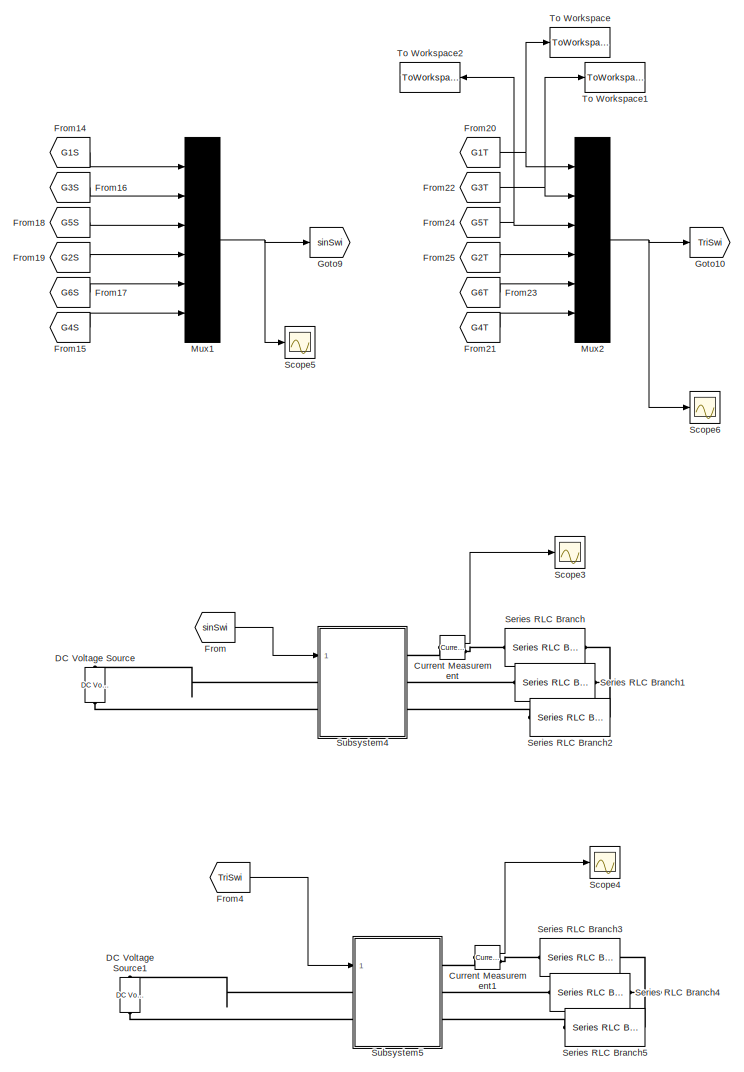
[diagram: root canvas - part 1/2, right side, full height]
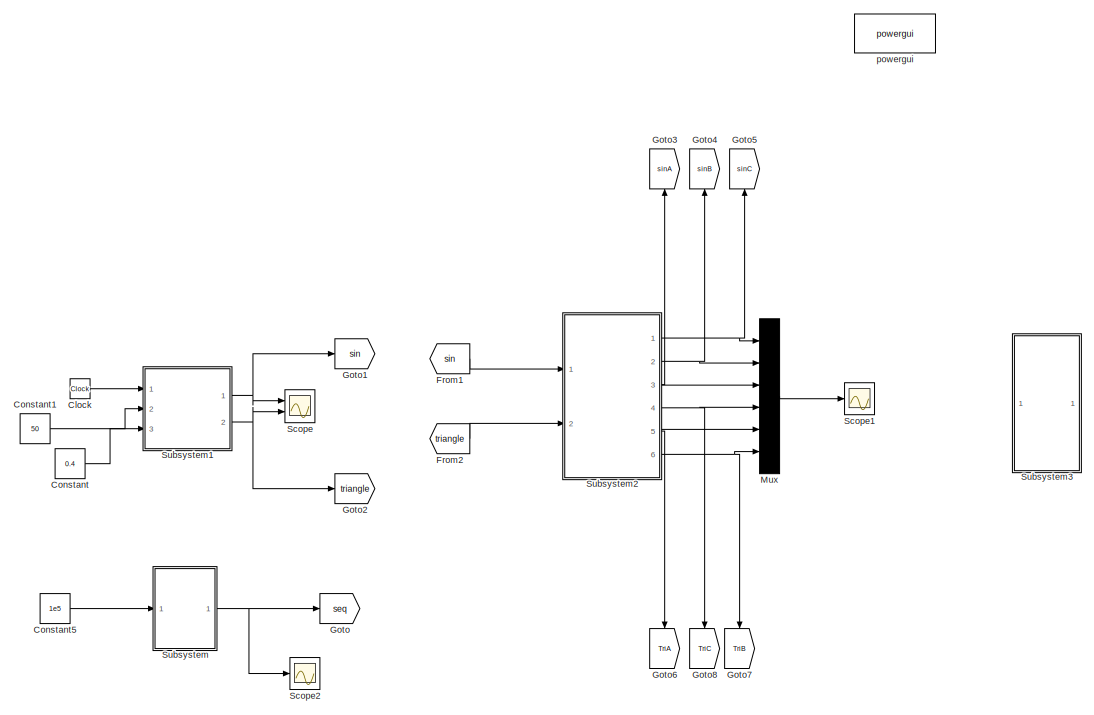
[diagram: root canvas - part 2/2, middle left region]
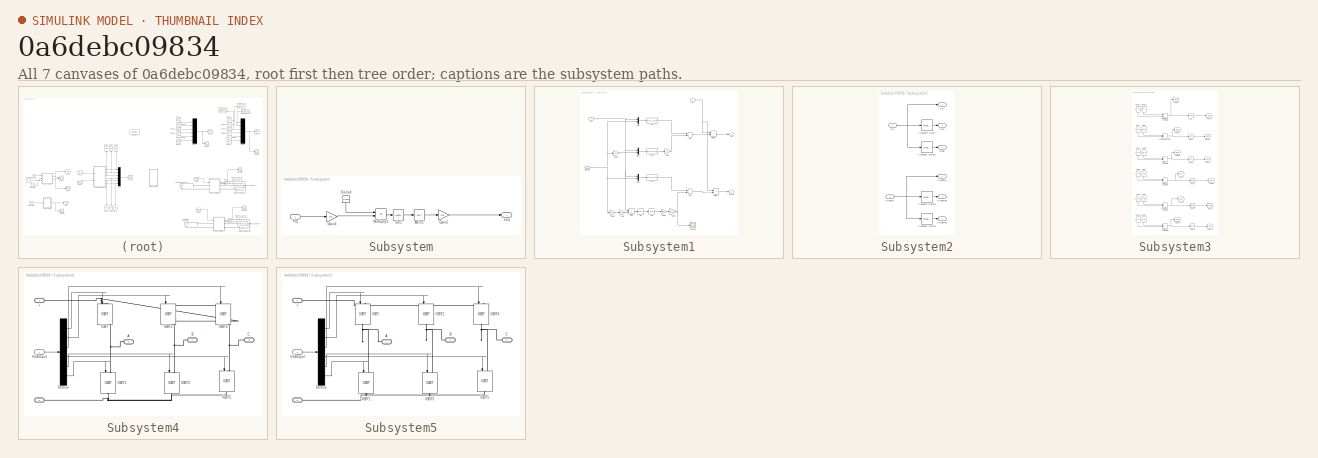
[diagram: thumbnail index - all 7 canvases of the model, root first then tree order]
MODEL slx_0a6debc09834
KIND model
CONFIG AbsTol = auto
CONFIG EnableMultiTasking = off
CONFIG FixedStep = 1e-5
CONFIG MaxStep = auto
CONFIG MinStep = auto
CONFIG RelTol = 1e-3
CONFIG SampleTimeConstraint = Unconstrained
CONFIG Solver = VariableStepDiscrete
CONFIG SolverName = VariableStepDiscrete
CONFIG StartTime = 0.0
CONFIG StopTime = 0.5
BLOCK [Clock] Clock
  Decimation = 1
BLOCK [Constant] Constant
  Value = 0.4
BLOCK [Constant] Constant1
  Value = 50
BLOCK [Constant] Constant5
  Value = 1e5
BLOCK [Reference] Current Measurement  REF=powerlib/Measurements/Current Measurement
  Ports = [0, 1, 0, 0, 0, 1, 1]
  SourceBlock = powerlib/Measurements/Current Measurement
  SourceProductBaseCode = PS
  SourceProductName = Simscape Power Systems
  SourceType = Current Measurement
  UserDataPersistent = on
BLOCK [Reference] Current Measurement1  REF=powerlib/Measurements/Current Measurement
  Ports = [0, 1, 0, 0, 0, 1, 1]
  SourceBlock = powerlib/Measurements/Current Measurement
  SourceProductBaseCode = PS
  SourceProductName = Simscape Power Systems
  SourceType = Current Measurement
  UserDataPersistent = on
BLOCK [Reference] DC Voltage Source  REF=powerlib/Electrical
Sources/DC Voltage Source
  Ports = [0, 0, 0, 0, 0, 1, 1]
  SourceBlock = powerlib/Electrical\nSources/DC Voltage Source
  SourceProductBaseCode = PS
  SourceProductName = Simscape Power Systems
  SourceType = DC Voltage Source
BLOCK [Reference] DC Voltage Source1  REF=powerlib/Electrical
Sources/DC Voltage Source
  Ports = [0, 0, 0, 0, 0, 1, 1]
  SourceBlock = powerlib/Electrical\nSources/DC Voltage Source
  SourceProductBaseCode = PS
  SourceProductName = Simscape Power Systems
  SourceType = DC Voltage Source
BLOCK [From] From
  GotoTag = sinSwi
  TagVisibility = global
BLOCK [From] From1
  GotoTag = sin
BLOCK [From] From14
  GotoTag = G1S
  TagVisibility = global
BLOCK [From] From15
  GotoTag = G4S
  TagVisibility = global
BLOCK [From] From16
  GotoTag = G3S
  TagVisibility = global
BLOCK [From] From17
  GotoTag = G6S
  TagVisibility = global
BLOCK [From] From18
  GotoTag = G5S
  TagVisibility = global
BLOCK [From] From19
  GotoTag = G2S
  TagVisibility = global
BLOCK [From] From2
  GotoTag = triangle
BLOCK [From] From20
  GotoTag = G1T
  TagVisibility = global
BLOCK [From] From21
  GotoTag = G4T
  TagVisibility = global
BLOCK [From] From22
  GotoTag = G3T
  TagVisibility = global
BLOCK [From] From23
  GotoTag = G6T
  TagVisibility = global
BLOCK [From] From24
  GotoTag = G5T
  TagVisibility = global
BLOCK [From] From25
  GotoTag = G2T
  TagVisibility = global
BLOCK [From] From4
  GotoTag = TriSwi
  TagVisibility = global
BLOCK [Goto] Goto
  GotoTag = seq
  TagVisibility = global
BLOCK [Goto] Goto1
  GotoTag = sin
BLOCK [Goto] Goto10
  GotoTag = TriSwi
  TagVisibility = global
BLOCK [Goto] Goto2
  GotoTag = triangle
BLOCK [Goto] Goto3
  GotoTag = sinA
  TagVisibility = global
BLOCK [Goto] Goto4
  GotoTag = sinB
  TagVisibility = global
BLOCK [Goto] Goto5
  GotoTag = sinC
  TagVisibility = global
BLOCK [Goto] Goto6
  GotoTag = TriA
  TagVisibility = global
BLOCK [Goto] Goto7
  GotoTag = TriB
  TagVisibility = global
BLOCK [Goto] Goto8
  GotoTag = TriC
  TagVisibility = global
BLOCK [Goto] Goto9
  GotoTag = sinSwi
  TagVisibility = global
BLOCK [Mux] Mux
  DisplayOption = bar
  Inputs = 6
  Ports = [6, 1]
BLOCK [Mux] Mux1
  DisplayOption = bar
  Inputs = 6
  Ports = [6, 1]
BLOCK [Mux] Mux2
  DisplayOption = bar
  Inputs = 6
  Ports = [6, 1]
BLOCK [Scope] Scope
  Floating = off
  NumInputPorts = 2
  Ports = [2]
  ScopeSpecificationString = Simulink.scopes.TimeScopeBlockCfg('CurrentConfiguration', extmgr.ConfigurationSet(extmgr.Configuration('Core','General UI',true),extmgr.Configuration('Core','Source UI',true),extmgr.Configuration('Sources','WiredSimulink',true,'DataLoggingVariableName','ScopeData2'),extmgr.Configuration('Visuals','Time Domain',true,'SerializedDisplays',{struct('MinYLimReal','-2.09982','MaxYLimReal','0.93513','YLab...<+2108ch>
BLOCK [Scope] Scope1
  Floating = off
  NumInputPorts = 1
  Ports = [1]
  ScopeSpecificationString = Simulink.scopes.TimeScopeBlockCfg('CurrentConfiguration', extmgr.ConfigurationSet(extmgr.Configuration('Core','General UI',true),extmgr.Configuration('Core','Source UI',true),extmgr.Configuration('Sources','WiredSimulink',true,'DataLoggingVariableName','ScopeData3'),extmgr.Configuration('Visuals','Time Domain',true,'SerializedDisplays',{struct('MinYLimReal','-0.44179','MaxYLimReal','0.44179','YLab...<+1682ch>
BLOCK [Scope] Scope2
  Floating = off
  NumInputPorts = 1
  Ports = [1]
  ScopeSpecificationString = Simulink.scopes.TimeScopeBlockCfg('CurrentConfiguration', extmgr.ConfigurationSet(extmgr.Configuration('Core','General UI',true),extmgr.Configuration('Core','Source UI',true),extmgr.Configuration('Sources','WiredSimulink',true,'DataLoggingVariableName','ScopeData1'),extmgr.Configuration('Visuals','Time Domain',true,'SerializedDisplays',{struct('MinYLimReal','-1.25','MaxYLimReal','1.25','YLabelReal...<+1398ch>
BLOCK [Scope] Scope3
  Floating = off
  NumInputPorts = 1
  Ports = [1]
  ScopeSpecificationString = Simulink.scopes.TimeScopeBlockCfg('CurrentConfiguration', extmgr.ConfigurationSet(extmgr.Configuration('Core','General UI',true),extmgr.Configuration('Core','Source UI',true),extmgr.Configuration('Sources','WiredSimulink',true,'DataLoggingVariableName','ScopeData4'),extmgr.Configuration('Visuals','Time Domain',true,'SerializedDisplays',{struct('MinYLimReal','-0.01637','MaxYLimReal','0.01637','YLab...<+1449ch>
BLOCK [Scope] Scope4
  Floating = off
  NumInputPorts = 1
  Ports = [1]
  ScopeSpecificationString = Simulink.scopes.TimeScopeBlockCfg('CurrentConfiguration', extmgr.ConfigurationSet(extmgr.Configuration('Core','General UI',true),extmgr.Configuration('Core','Source UI',true),extmgr.Configuration('Sources','WiredSimulink',true,'DataLoggingVariableName','ScopeData5'),extmgr.Configuration('Visuals','Time Domain',true,'SerializedDisplays',{struct('MinYLimReal','-0.08189','MaxYLimReal','0.10284','YLab...<+1451ch>
BLOCK [Scope] Scope5
  Floating = off
  NumInputPorts = 1
  Ports = [1]
  ScopeSpecificationString = Simulink.scopes.TimeScopeBlockCfg('CurrentConfiguration', extmgr.ConfigurationSet(extmgr.Configuration('Core','General UI',true),extmgr.Configuration('Core','Source UI',true),extmgr.Configuration('Sources','WiredSimulink',true,'DataLoggingVariableName','ScopeData6'),extmgr.Configuration('Visuals','Time Domain',true,'SerializedDisplays',{struct('MinYLimReal','-0.16524','MaxYLimReal','1.24969','YLab...<+1658ch>
BLOCK [Scope] Scope6
  Floating = off
  NumInputPorts = 1
  Ports = [1]
  ScopeSpecificationString = Simulink.scopes.TimeScopeBlockCfg('CurrentConfiguration', extmgr.ConfigurationSet(extmgr.Configuration('Core','General UI',true),extmgr.Configuration('Core','Source UI',true),extmgr.Configuration('Sources','WiredSimulink',true,'DataLoggingVariableName','ScopeData7'),extmgr.Configuration('Visuals','Time Domain',true,'SerializedDisplays',{struct('MinYLimReal','-10','MaxYLimReal','10','YLabelReal',''...<+1315ch>
BLOCK [Reference] Series RLC Branch  REF=powerlib/Elements/Series RLC Branch
  Ports = [0, 0, 0, 0, 0, 1, 1]
  SourceBlock = powerlib/Elements/Series RLC Branch
  SourceProductBaseCode = PS
  SourceProductName = Simscape Power Systems
  SourceType = Series RLC Branch
BLOCK [Reference] Series RLC Branch1  REF=powerlib/Elements/Series RLC Branch
  Ports = [0, 0, 0, 0, 0, 1, 1]
  SourceBlock = powerlib/Elements/Series RLC Branch
  SourceProductBaseCode = PS
  SourceProductName = Simscape Power Systems
  SourceType = Series RLC Branch
BLOCK [Reference] Series RLC Branch2  REF=powerlib/Elements/Series RLC Branch
  Ports = [0, 0, 0, 0, 0, 1, 1]
  SourceBlock = powerlib/Elements/Series RLC Branch
  SourceProductBaseCode = PS
  SourceProductName = Simscape Power Systems
  SourceType = Series RLC Branch
BLOCK [Reference] Series RLC Branch3  REF=powerlib/Elements/Series RLC Branch
  Ports = [0, 0, 0, 0, 0, 1, 1]
  SourceBlock = powerlib/Elements/Series RLC Branch
  SourceProductBaseCode = PS
  SourceProductName = Simscape Power Systems
  SourceType = Series RLC Branch
BLOCK [Reference] Series RLC Branch4  REF=powerlib/Elements/Series RLC Branch
  Ports = [0, 0, 0, 0, 0, 1, 1]
  SourceBlock = powerlib/Elements/Series RLC Branch
  SourceProductBaseCode = PS
  SourceProductName = Simscape Power Systems
  SourceType = Series RLC Branch
BLOCK [Reference] Series RLC Branch5  REF=powerlib/Elements/Series RLC Branch
  Ports = [0, 0, 0, 0, 0, 1, 1]
  SourceBlock = powerlib/Elements/Series RLC Branch
  SourceProductBaseCode = PS
  SourceProductName = Simscape Power Systems
  SourceType = Series RLC Branch
BLOCK [SubSystem] Subsystem
  Ports = [1, 1]
  RequestExecContextInheritance = off
BLOCK [Trigonometry] Subsystem/Asin1
  Operator = asin
  Ports = [1, 1]
BLOCK [Clock] Subsystem/Clock4
BLOCK [Inport] Subsystem/Frq
  IconDisplay = Port number
BLOCK [Gain] Subsystem/Gain4
  Gain = 2*pi
  OutDataTypeStr = Inherit: Inherit via internal rule
  ParamDataTypeStr = Inherit: Inherit via internal rule
  SaturateOnIntegerOverflow = off
BLOCK [Gain] Subsystem/Gain5
  Gain = 2/pi
  OutDataTypeStr = Inherit: Inherit via internal rule
  ParamDataTypeStr = Inherit: Inherit via internal rule
  SaturateOnIntegerOverflow = off
BLOCK [Product] Subsystem/Multiply1
  InputSameDT = off
  OutDataTypeStr = Inherit: Inherit via internal rule
  Ports = [2, 1]
  RndMeth = Floor
  SaturateOnIntegerOverflow = off
BLOCK [Trigonometry] Subsystem/Sin1
  Ports = [1, 1]
BLOCK [Outport] Subsystem/seq 
  IconDisplay = Port number
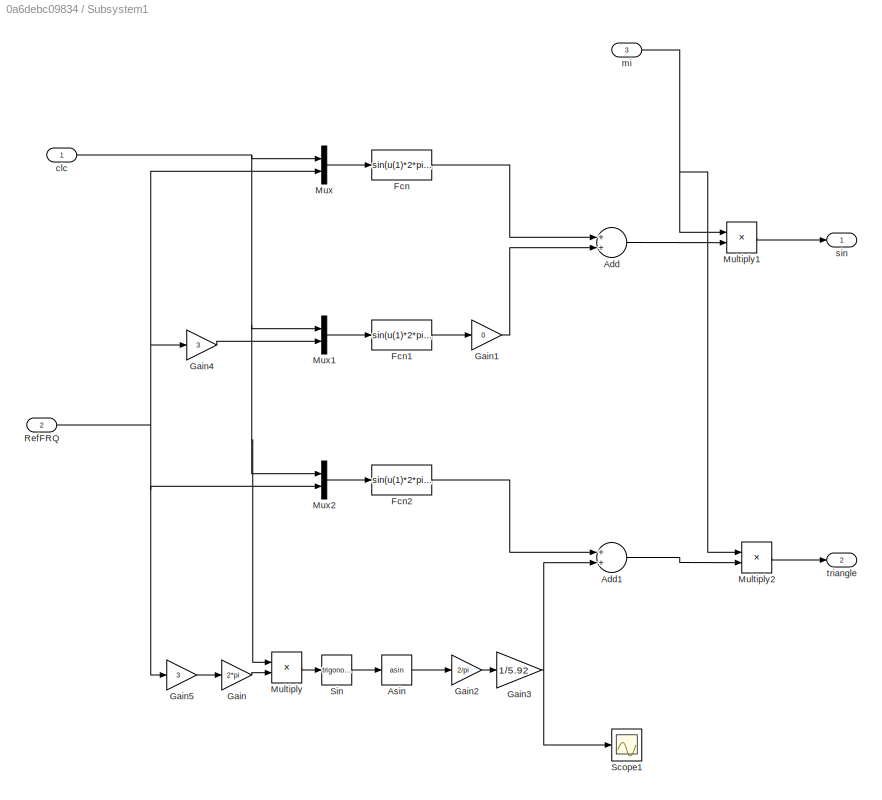
BLOCK [SubSystem] Subsystem1
  Ports = [3, 2]
  RequestExecContextInheritance = off
BLOCK [Sum] Subsystem1/Add
  InputSameDT = off
  OutDataTypeStr = Inherit: Inherit via internal rule
  Ports = [2, 1]
  SaturateOnIntegerOverflow = off
BLOCK [Sum] Subsystem1/Add1
  InputSameDT = off
  OutDataTypeStr = Inherit: Inherit via internal rule
  Ports = [2, 1]
  SaturateOnIntegerOverflow = off
BLOCK [Trigonometry] Subsystem1/Asin
  Operator = asin
  Ports = [1, 1]
BLOCK [Fcn] Subsystem1/Fcn
  Expr = sin(u(1)*2*pi*u(2))
BLOCK [Fcn] Subsystem1/Fcn1
  Expr = sin(u(1)*2*pi*u(2))
BLOCK [Fcn] Subsystem1/Fcn2
  Expr = sin(u(1)*2*pi*u(2))
BLOCK [Gain] Subsystem1/Gain
  Gain = 2*pi
  OutDataTypeStr = Inherit: Inherit via internal rule
  ParamDataTypeStr = Inherit: Inherit via internal rule
  SaturateOnIntegerOverflow = off
BLOCK [Gain] Subsystem1/Gain1
  Gain = 0
  OutDataTypeStr = Inherit: Inherit via internal rule
  ParamDataTypeStr = Inherit: Inherit via internal rule
  SaturateOnIntegerOverflow = off
BLOCK [Gain] Subsystem1/Gain2
  Gain = 2/pi
  OutDataTypeStr = Inherit: Inherit via internal rule
  ParamDataTypeStr = Inherit: Inherit via internal rule
  SaturateOnIntegerOverflow = off
BLOCK [Gain] Subsystem1/Gain3
  Gain = 1/5.92
  OutDataTypeStr = Inherit: Inherit via internal rule
  ParamDataTypeStr = Inherit: Inherit via internal rule
  SaturateOnIntegerOverflow = off
BLOCK [Gain] Subsystem1/Gain4
  Gain = 3
  OutDataTypeStr = Inherit: Inherit via internal rule
  ParamDataTypeStr = Inherit: Inherit via internal rule
  SaturateOnIntegerOverflow = off
BLOCK [Gain] Subsystem1/Gain5
  Gain = 3
  OutDataTypeStr = Inherit: Inherit via internal rule
  ParamDataTypeStr = Inherit: Inherit via internal rule
  SaturateOnIntegerOverflow = off
BLOCK [Product] Subsystem1/Multiply
  InputSameDT = off
  OutDataTypeStr = Inherit: Inherit via internal rule
  Ports = [2, 1]
  RndMeth = Floor
  SaturateOnIntegerOverflow = off
BLOCK [Product] Subsystem1/Multiply1
  InputSameDT = off
  OutDataTypeStr = Inherit: Inherit via internal rule
  Ports = [2, 1]
  RndMeth = Floor
  SaturateOnIntegerOverflow = off
BLOCK [Product] Subsystem1/Multiply2
  InputSameDT = off
  OutDataTypeStr = Inherit: Inherit via internal rule
  Ports = [2, 1]
  RndMeth = Floor
  SaturateOnIntegerOverflow = off
BLOCK [Mux] Subsystem1/Mux
  DisplayOption = bar
  Inputs = 2
  Ports = [2, 1]
BLOCK [Mux] Subsystem1/Mux1
  DisplayOption = bar
  Inputs = 2
  Ports = [2, 1]
BLOCK [Mux] Subsystem1/Mux2
  DisplayOption = bar
  Inputs = 2
  Ports = [2, 1]
BLOCK [Inport] Subsystem1/RefFRQ
  IconDisplay = Port number
  Port = 2
BLOCK [Scope] Subsystem1/Scope1
  Floating = off
  NumInputPorts = 1
  Ports = [1]
  ScopeSpecificationString = Simulink.scopes.TimeScopeBlockCfg('CurrentConfiguration', extmgr.ConfigurationSet(extmgr.Configuration('Core','General UI',true),extmgr.Configuration('Core','Source UI',true),extmgr.Configuration('Sources','WiredSimulink',true,'DataLoggingVariableName','ScopeData1'),extmgr.Configuration('Visuals','Time Domain',true,'SerializedDisplays',{struct('MinYLimReal','-0.18498','MaxYLimReal','0.24785','YLab...<+1410ch>
BLOCK [Trigonometry] Subsystem1/Sin
  Ports = [1, 1]
BLOCK [Inport] Subsystem1/clc
  IconDisplay = Port number
BLOCK [Inport] Subsystem1/mi
  IconDisplay = Port number
  Port = 3
BLOCK [Outport] Subsystem1/sin
  IconDisplay = Port number
BLOCK [Outport] Subsystem1/triangle
  IconDisplay = Port number
  Port = 2
BLOCK [SubSystem] Subsystem2
  Ports = [2, 6]
  RequestExecContextInheritance = off
BLOCK [TransportDelay] Subsystem2/Transport Delay
  DelayTime = (1/150)
  Ports = [1, 1]
BLOCK [TransportDelay] Subsystem2/Transport Delay1
  DelayTime = 2/150
  Ports = [1, 1]
BLOCK [TransportDelay] Subsystem2/Transport Delay2
  DelayTime = (1/150)
  Ports = [1, 1]
BLOCK [TransportDelay] Subsystem2/Transport Delay3
  DelayTime = 2/150
  Ports = [1, 1]
BLOCK [Inport] Subsystem2/sin
  IconDisplay = Port number
BLOCK [Outport] Subsystem2/sinA
  IconDisplay = Port number
  Port = 3
BLOCK [Outport] Subsystem2/sinB
  IconDisplay = Port number
  Port = 2
BLOCK [Outport] Subsystem2/sinC
  IconDisplay = Port number
BLOCK [Inport] Subsystem2/triangle
  IconDisplay = Port number
  Port = 2
BLOCK [Outport] Subsystem2/triangleA
  IconDisplay = Port number
  Port = 5
BLOCK [Outport] Subsystem2/triangleB
  IconDisplay = Port number
  Port = 6
BLOCK [Outport] Subsystem2/triangleC
  IconDisplay = Port number
  Port = 4
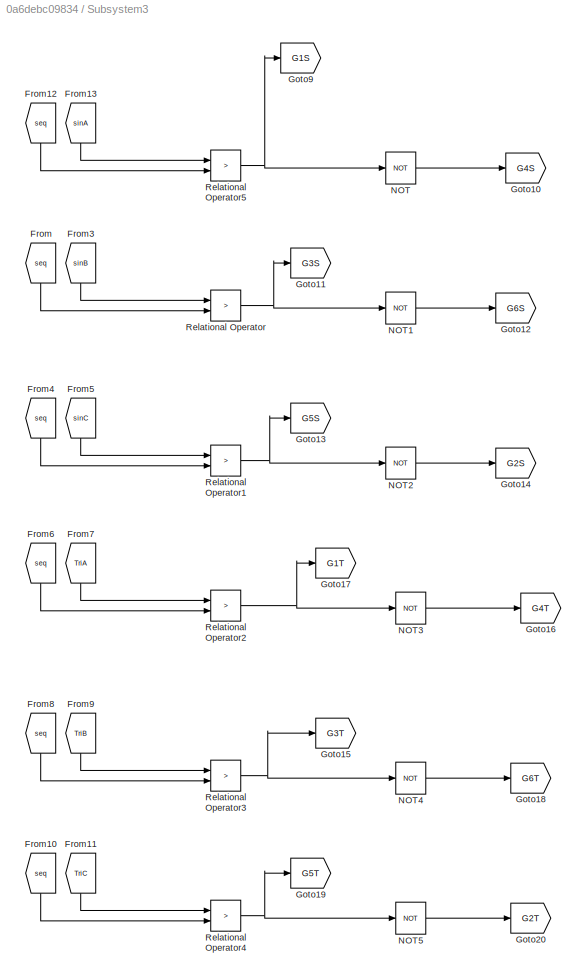
BLOCK [SubSystem] Subsystem3
  Ports = []
  RequestExecContextInheritance = off
BLOCK [From] Subsystem3/From
  GotoTag = seq
  TagVisibility = global
BLOCK [From] Subsystem3/From10
  GotoTag = seq
  TagVisibility = global
BLOCK [From] Subsystem3/From11
  GotoTag = TriC
  TagVisibility = global
BLOCK [From] Subsystem3/From12
  GotoTag = seq
  TagVisibility = global
BLOCK [From] Subsystem3/From13
  GotoTag = sinA
  TagVisibility = global
BLOCK [From] Subsystem3/From3
  GotoTag = sinB
  TagVisibility = global
BLOCK [From] Subsystem3/From4
  GotoTag = seq
  TagVisibility = global
BLOCK [From] Subsystem3/From5
  GotoTag = sinC
  TagVisibility = global
BLOCK [From] Subsystem3/From6
  GotoTag = seq
  TagVisibility = global
BLOCK [From] Subsystem3/From7
  GotoTag = TriA
  TagVisibility = global
BLOCK [From] Subsystem3/From8
  GotoTag = seq
  TagVisibility = global
BLOCK [From] Subsystem3/From9
  GotoTag = TriB
  TagVisibility = global
BLOCK [Goto] Subsystem3/Goto10
  GotoTag = G4S
  TagVisibility = global
BLOCK [Goto] Subsystem3/Goto11
  GotoTag = G3S
  TagVisibility = global
BLOCK [Goto] Subsystem3/Goto12
  GotoTag = G6S
  TagVisibility = global
BLOCK [Goto] Subsystem3/Goto13
  GotoTag = G5S
  TagVisibility = global
BLOCK [Goto] Subsystem3/Goto14
  GotoTag = G2S
  TagVisibility = global
BLOCK [Goto] Subsystem3/Goto15
  GotoTag = G3T
  TagVisibility = global
BLOCK [Goto] Subsystem3/Goto16
  GotoTag = G4T
  TagVisibility = global
BLOCK [Goto] Subsystem3/Goto17
  GotoTag = G1T
  TagVisibility = global
BLOCK [Goto] Subsystem3/Goto18
  GotoTag = G6T
  TagVisibility = global
BLOCK [Goto] Subsystem3/Goto19
  GotoTag = G5T
  TagVisibility = global
BLOCK [Goto] Subsystem3/Goto20
  GotoTag = G2T
  TagVisibility = global
BLOCK [Goto] Subsystem3/Goto9
  GotoTag = G1S
  TagVisibility = global
BLOCK [Logic] Subsystem3/NOT
  AllPortsSameDT = off
  Operator = NOT
  OutDataTypeStr = boolean
  Ports = [1, 1]
BLOCK [Logic] Subsystem3/NOT1
  AllPortsSameDT = off
  Operator = NOT
  OutDataTypeStr = boolean
  Ports = [1, 1]
BLOCK [Logic] Subsystem3/NOT2
  AllPortsSameDT = off
  Operator = NOT
  OutDataTypeStr = boolean
  Ports = [1, 1]
BLOCK [Logic] Subsystem3/NOT3
  AllPortsSameDT = off
  Operator = NOT
  OutDataTypeStr = boolean
  Ports = [1, 1]
BLOCK [Logic] Subsystem3/NOT4
  AllPortsSameDT = off
  Operator = NOT
  OutDataTypeStr = boolean
  Ports = [1, 1]
BLOCK [Logic] Subsystem3/NOT5
  AllPortsSameDT = off
  Operator = NOT
  OutDataTypeStr = boolean
  Ports = [1, 1]
BLOCK [RelationalOperator] Subsystem3/Relational Operator
  InputSameDT = off
  Operator = >
  OutDataTypeStr = boolean
  Ports = [2, 1]
  RndMeth = Simplest
BLOCK [RelationalOperator] Subsystem3/Relational Operator1
  InputSameDT = off
  Operator = >
  OutDataTypeStr = boolean
  Ports = [2, 1]
  RndMeth = Simplest
BLOCK [RelationalOperator] Subsystem3/Relational Operator2
  InputSameDT = off
  Operator = >
  OutDataTypeStr = boolean
  Ports = [2, 1]
  RndMeth = Simplest
BLOCK [RelationalOperator] Subsystem3/Relational Operator3
  InputSameDT = off
  Operator = >
  OutDataTypeStr = boolean
  Ports = [2, 1]
  RndMeth = Simplest
BLOCK [RelationalOperator] Subsystem3/Relational Operator4
  InputSameDT = off
  Operator = >
  OutDataTypeStr = boolean
  Ports = [2, 1]
  RndMeth = Simplest
BLOCK [RelationalOperator] Subsystem3/Relational Operator5
  InputSameDT = off
  Operator = >
  OutDataTypeStr = boolean
  Ports = [2, 1]
  RndMeth = Simplest
BLOCK [SubSystem] Subsystem4
  Ports = [1, 0, 0, 0, 0, 2, 3]
  RequestExecContextInheritance = off
BLOCK [PMIOPort] Subsystem4/+
  Port = 4
  Side = Left
BLOCK [PMIOPort] Subsystem4/-
  Port = 5
  Side = Left
BLOCK [PMIOPort] Subsystem4/A 
  Side = Right
BLOCK [PMIOPort] Subsystem4/B
  Port = 2
  Side = Right
BLOCK [PMIOPort] Subsystem4/C
  Port = 3
  Side = Right
BLOCK [Demux] Subsystem4/Demux
  DisplayOption = bar
  Outputs = 6
  Ports = [1, 6]
BLOCK [Reference] Subsystem4/IGBT  REF=powerlib/Power
Electronics/IGBT
  Ports = [1, 0, 0, 0, 0, 1, 1]
  SourceBlock = powerlib/Power\nElectronics/IGBT
  SourceProductBaseCode = PS
  SourceProductName = Simscape Power Systems
  SourceType = IGBT
BLOCK [Reference] Subsystem4/IGBT1  REF=powerlib/Power
Electronics/IGBT
  Ports = [1, 0, 0, 0, 0, 1, 1]
  SourceBlock = powerlib/Power\nElectronics/IGBT
  SourceProductBaseCode = PS
  SourceProductName = Simscape Power Systems
  SourceType = IGBT
BLOCK [Reference] Subsystem4/IGBT2  REF=powerlib/Power
Electronics/IGBT
  Ports = [1, 0, 0, 0, 0, 1, 1]
  SourceBlock = powerlib/Power\nElectronics/IGBT
  SourceProductBaseCode = PS
  SourceProductName = Simscape Power Systems
  SourceType = IGBT
BLOCK [Reference] Subsystem4/IGBT3  REF=powerlib/Power
Electronics/IGBT
  Ports = [1, 0, 0, 0, 0, 1, 1]
  SourceBlock = powerlib/Power\nElectronics/IGBT
  SourceProductBaseCode = PS
  SourceProductName = Simscape Power Systems
  SourceType = IGBT
BLOCK [Reference] Subsystem4/IGBT4  REF=powerlib/Power
Electronics/IGBT
  Ports = [1, 0, 0, 0, 0, 1, 1]
  SourceBlock = powerlib/Power\nElectronics/IGBT
  SourceProductBaseCode = PS
  SourceProductName = Simscape Power Systems
  SourceType = IGBT
BLOCK [Reference] Subsystem4/IGBT5  REF=powerlib/Power
Electronics/IGBT
  Ports = [1, 0, 0, 0, 0, 1, 1]
  SourceBlock = powerlib/Power\nElectronics/IGBT
  SourceProductBaseCode = PS
  SourceProductName = Simscape Power Systems
  SourceType = IGBT
BLOCK [Inport] Subsystem4/InGateput
  IconDisplay = Port number
BLOCK [SubSystem] Subsystem5
  Ports = [1, 0, 0, 0, 0, 2, 3]
  RequestExecContextInheritance = off
BLOCK [PMIOPort] Subsystem5/+
  Port = 4
  Side = Left
BLOCK [PMIOPort] Subsystem5/-
  Port = 5
  Side = Left
BLOCK [PMIOPort] Subsystem5/A 
  Side = Right
BLOCK [PMIOPort] Subsystem5/B
  Port = 2
  Side = Right
BLOCK [PMIOPort] Subsystem5/C
  Port = 3
  Side = Right
BLOCK [Demux] Subsystem5/Demux
  DisplayOption = bar
  Outputs = 6
  Ports = [1, 6]
BLOCK [Reference] Subsystem5/IGBT  REF=powerlib/Power
Electronics/IGBT
  Ports = [1, 0, 0, 0, 0, 1, 1]
  SourceBlock = powerlib/Power\nElectronics/IGBT
  SourceProductBaseCode = PS
  SourceProductName = Simscape Power Systems
  SourceType = IGBT
BLOCK [Reference] Subsystem5/IGBT1  REF=powerlib/Power
Electronics/IGBT
  Ports = [1, 0, 0, 0, 0, 1, 1]
  SourceBlock = powerlib/Power\nElectronics/IGBT
  SourceProductBaseCode = PS
  SourceProductName = Simscape Power Systems
  SourceType = IGBT
BLOCK [Reference] Subsystem5/IGBT2  REF=powerlib/Power
Electronics/IGBT
  Ports = [1, 0, 0, 0, 0, 1, 1]
  SourceBlock = powerlib/Power\nElectronics/IGBT
  SourceProductBaseCode = PS
  SourceProductName = Simscape Power Systems
  SourceType = IGBT
BLOCK [Reference] Subsystem5/IGBT3  REF=powerlib/Power
Electronics/IGBT
  Ports = [1, 0, 0, 0, 0, 1, 1]
  SourceBlock = powerlib/Power\nElectronics/IGBT
  SourceProductBaseCode = PS
  SourceProductName = Simscape Power Systems
  SourceType = IGBT
BLOCK [Reference] Subsystem5/IGBT4  REF=powerlib/Power
Electronics/IGBT
  Ports = [1, 0, 0, 0, 0, 1, 1]
  SourceBlock = powerlib/Power\nElectronics/IGBT
  SourceProductBaseCode = PS
  SourceProductName = Simscape Power Systems
  SourceType = IGBT
BLOCK [Reference] Subsystem5/IGBT5  REF=powerlib/Power
Electronics/IGBT
  Ports = [1, 0, 0, 0, 0, 1, 1]
  SourceBlock = powerlib/Power\nElectronics/IGBT
  SourceProductBaseCode = PS
  SourceProductName = Simscape Power Systems
  SourceType = IGBT
BLOCK [Inport] Subsystem5/InGateput
  IconDisplay = Port number
BLOCK [ToWorkspace] To Workspace
  FixptAsFi = on
  MaxDataPoints = inf
  Ports = [1]
  SampleTime = -1
  Save2DSignal = 3-D array (concatenate along third dimension)
  SaveFormat = Timeseries
  VariableName = Sa
BLOCK [ToWorkspace] To Workspace1
  FixptAsFi = on
  MaxDataPoints = inf
  Ports = [1]
  SampleTime = -1
  Save2DSignal = 3-D array (concatenate along third dimension)
  SaveFormat = Timeseries
  VariableName = Sb
BLOCK [ToWorkspace] To Workspace2
  FixptAsFi = on
  MaxDataPoints = inf
  Ports = [1]
  SampleTime = -1
  Save2DSignal = 3-D array (concatenate along third dimension)
  SaveFormat = Timeseries
  VariableName = Sc
BLOCK [Reference] powergui  REF=powerlib/powergui
  Ports = []
  Priority = 1
  SourceBlock = powerlib/powergui
  SourceProductBaseCode = PS
  SourceProductName = Simscape Power Systems
  SourceType = PSB option menu block
LINE Clock:1 -> Subsystem1:1
LINE Constant1:1 -> Subsystem1:2
LINE Constant5:1 -> Subsystem:1
LINE Constant:1 -> Subsystem1:3
LINE Current Measurement1:1 -> Scope4:1
LINE Current Measurement:1 -> Scope3:1
LINE From14:1 -> Mux1:1
LINE From15:1 -> Mux1:6
LINE From16:1 -> Mux1:2
LINE From17:1 -> Mux1:5
LINE From18:1 -> Mux1:3
LINE From19:1 -> Mux1:4
LINE From1:1 -> Subsystem2:1
NET From20:1 -> Mux2:1, To Workspace:1
LINE From21:1 -> Mux2:6
NET From22:1 -> Mux2:2, To Workspace1:1
LINE From23:1 -> Mux2:5
NET From24:1 -> Mux2:3, To Workspace2:1
LINE From25:1 -> Mux2:4
LINE From2:1 -> Subsystem2:2
LINE From4:1 -> Subsystem5:1
LINE From:1 -> Subsystem4:1
NET Mux1:1 -> Goto9:1, Scope5:1
NET Mux2:1 -> Goto10:1, Scope6:1
LINE Mux:1 -> Scope1:1
LINE Subsystem/Asin1:1 -> Subsystem/Gain5:1
LINE Subsystem/Clock4:1 -> Subsystem/Multiply1:1
LINE Subsystem/Frq:1 -> Subsystem/Gain4:1
LINE Subsystem/Gain4:1 -> Subsystem/Multiply1:2
LINE Subsystem/Gain5:1 -> Subsystem/seq :1
LINE Subsystem/Multiply1:1 -> Subsystem/Sin1:1
LINE Subsystem/Sin1:1 -> Subsystem/Asin1:1
LINE Subsystem1/Add1:1 -> Subsystem1/Multiply2:2
LINE Subsystem1/Add:1 -> Subsystem1/Multiply1:2
LINE Subsystem1/Asin:1 -> Subsystem1/Gain2:1
LINE Subsystem1/Fcn1:1 -> Subsystem1/Gain1:1
LINE Subsystem1/Fcn2:1 -> Subsystem1/Add1:1
LINE Subsystem1/Fcn:1 -> Subsystem1/Add:1
LINE Subsystem1/Gain1:1 -> Subsystem1/Add:2
LINE Subsystem1/Gain2:1 -> Subsystem1/Gain3:1
NET Subsystem1/Gain3:1 -> Subsystem1/Add1:2, Subsystem1/Scope1:1
LINE Subsystem1/Gain4:1 -> Subsystem1/Mux1:2
LINE Subsystem1/Gain5:1 -> Subsystem1/Gain:1
LINE Subsystem1/Gain:1 -> Subsystem1/Multiply:2
LINE Subsystem1/Multiply1:1 -> Subsystem1/sin:1
LINE Subsystem1/Multiply2:1 -> Subsystem1/triangle:1
LINE Subsystem1/Multiply:1 -> Subsystem1/Sin:1
LINE Subsystem1/Mux1:1 -> Subsystem1/Fcn1:1
LINE Subsystem1/Mux2:1 -> Subsystem1/Fcn2:1
LINE Subsystem1/Mux:1 -> Subsystem1/Fcn:1
NET Subsystem1/RefFRQ:1 -> Subsystem1/Gain4:1, Subsystem1/Gain5:1, Subsystem1/Mux2:2, Subsystem1/Mux:2
LINE Subsystem1/Sin:1 -> Subsystem1/Asin:1
NET Subsystem1/clc:1 -> Subsystem1/Multiply:1, Subsystem1/Mux1:1, Subsystem1/Mux2:1, Subsystem1/Mux:1
NET Subsystem1/mi:1 -> Subsystem1/Multiply1:1, Subsystem1/Multiply2:1
NET Subsystem1:1 -> Goto1:1, Scope:1
NET Subsystem1:2 -> Goto2:1, Scope:2
LINE Subsystem2/Transport Delay1:1 -> Subsystem2/sinB:1
LINE Subsystem2/Transport Delay2:1 -> Subsystem2/triangleB:1
LINE Subsystem2/Transport Delay3:1 -> Subsystem2/triangleC:1
LINE Subsystem2/Transport Delay:1 -> Subsystem2/sinC:1
NET Subsystem2/sin:1 -> Subsystem2/Transport Delay1:1, Subsystem2/Transport Delay:1, Subsystem2/sinA:1
NET Subsystem2/triangle:1 -> Subsystem2/Transport Delay2:1, Subsystem2/Transport Delay3:1, Subsystem2/triangleA:1
NET Subsystem2:1 -> Goto5:1, Mux:1
NET Subsystem2:2 -> Goto4:1, Mux:2
NET Subsystem2:3 -> Goto3:1, Mux:3
NET Subsystem2:4 -> Goto8:1, Mux:4
NET Subsystem2:5 -> Goto6:1, Mux:5
NET Subsystem2:6 -> Goto7:1, Mux:6
LINE Subsystem3/From10:1 -> Subsystem3/Relational Operator4:2
LINE Subsystem3/From11:1 -> Subsystem3/Relational Operator4:1
LINE Subsystem3/From12:1 -> Subsystem3/Relational Operator5:2
LINE Subsystem3/From13:1 -> Subsystem3/Relational Operator5:1
LINE Subsystem3/From3:1 -> Subsystem3/Relational Operator:1
LINE Subsystem3/From4:1 -> Subsystem3/Relational Operator1:2
LINE Subsystem3/From5:1 -> Subsystem3/Relational Operator1:1
LINE Subsystem3/From6:1 -> Subsystem3/Relational Operator2:2
LINE Subsystem3/From7:1 -> Subsystem3/Relational Operator2:1
LINE Subsystem3/From8:1 -> Subsystem3/Relational Operator3:2
LINE Subsystem3/From9:1 -> Subsystem3/Relational Operator3:1
LINE Subsystem3/From:1 -> Subsystem3/Relational Operator:2
LINE Subsystem3/NOT1:1 -> Subsystem3/Goto12:1
LINE Subsystem3/NOT2:1 -> Subsystem3/Goto14:1
LINE Subsystem3/NOT3:1 -> Subsystem3/Goto16:1
LINE Subsystem3/NOT4:1 -> Subsystem3/Goto18:1
LINE Subsystem3/NOT5:1 -> Subsystem3/Goto20:1
LINE Subsystem3/NOT:1 -> Subsystem3/Goto10:1
NET Subsystem3/Relational Operator1:1 -> Subsystem3/Goto13:1, Subsystem3/NOT2:1
NET Subsystem3/Relational Operator2:1 -> Subsystem3/Goto17:1, Subsystem3/NOT3:1
NET Subsystem3/Relational Operator3:1 -> Subsystem3/Goto15:1, Subsystem3/NOT4:1
NET Subsystem3/Relational Operator4:1 -> Subsystem3/Goto19:1, Subsystem3/NOT5:1
NET Subsystem3/Relational Operator5:1 -> Subsystem3/Goto9:1, Subsystem3/NOT:1
NET Subsystem3/Relational Operator:1 -> Subsystem3/Goto11:1, Subsystem3/NOT1:1
LINE Subsystem4/Demux:1 -> Subsystem4/IGBT:1
LINE Subsystem4/Demux:2 -> Subsystem4/IGBT2:1
LINE Subsystem4/Demux:3 -> Subsystem4/IGBT4:1
LINE Subsystem4/Demux:4 -> Subsystem4/IGBT5:1
LINE Subsystem4/Demux:5 -> Subsystem4/IGBT3:1
LINE Subsystem4/Demux:6 -> Subsystem4/IGBT1:1
LINE Subsystem4/InGateput:1 -> Subsystem4/Demux:1
LINE Subsystem5/Demux:1 -> Subsystem5/IGBT:1
LINE Subsystem5/Demux:2 -> Subsystem5/IGBT2:1
LINE Subsystem5/Demux:3 -> Subsystem5/IGBT4:1
LINE Subsystem5/Demux:4 -> Subsystem5/IGBT5:1
LINE Subsystem5/Demux:5 -> Subsystem5/IGBT3:1
LINE Subsystem5/Demux:6 -> Subsystem5/IGBT1:1
LINE Subsystem5/InGateput:1 -> Subsystem5/Demux:1
NET Subsystem:1 -> Goto:1, Scope2:1
PLINE Current Measurement1:LConn1 -- Subsystem5:RConn1
PLINE Current Measurement1:RConn1 -- Series RLC Branch3:LConn1
PLINE Current Measurement:LConn1 -- Subsystem4:RConn1
PLINE Current Measurement:RConn1 -- Series RLC Branch:LConn1
PLINE DC Voltage Source1:LConn1 -- Subsystem5:LConn2
PLINE DC Voltage Source1:RConn1 -- Subsystem5:LConn1
PLINE DC Voltage Source:LConn1 -- Subsystem4:LConn2
PLINE DC Voltage Source:RConn1 -- Subsystem4:LConn1
PLINE Series RLC Branch1:LConn1 -- Subsystem4:RConn2
PNET net1: Series RLC Branch1:RConn1 -- Series RLC Branch2:RConn1 -- Series RLC Branch:RConn1
PLINE Series RLC Branch2:LConn1 -- Subsystem4:RConn3
PNET net2: Series RLC Branch3:RConn1 -- Series RLC Branch4:RConn1 -- Series RLC Branch5:RConn1
PLINE Series RLC Branch4:LConn1 -- Subsystem5:RConn2
PLINE Series RLC Branch5:LConn1 -- Subsystem5:RConn3
PNET net3: Subsystem4/+:RConn1 -- Subsystem4/IGBT2:LConn1 -- Subsystem4/IGBT4:LConn1 -- Subsystem4/IGBT:LConn1
PNET net4: Subsystem4/-:RConn1 -- Subsystem4/IGBT1:RConn1 -- Subsystem4/IGBT3:RConn1 -- Subsystem4/IGBT5:RConn1
PNET net5: Subsystem4/A :RConn1 -- Subsystem4/IGBT1:LConn1 -- Subsystem4/IGBT:RConn1
PNET net6: Subsystem4/B:RConn1 -- Subsystem4/IGBT2:RConn1 -- Subsystem4/IGBT3:LConn1
PNET net7: Subsystem4/C:RConn1 -- Subsystem4/IGBT4:RConn1 -- Subsystem4/IGBT5:LConn1
PNET net8: Subsystem5/+:RConn1 -- Subsystem5/IGBT2:LConn1 -- Subsystem5/IGBT4:LConn1 -- Subsystem5/IGBT:LConn1
PNET net9: Subsystem5/-:RConn1 -- Subsystem5/IGBT1:RConn1 -- Subsystem5/IGBT3:RConn1 -- Subsystem5/IGBT5:RConn1
PNET net10: Subsystem5/A :RConn1 -- Subsystem5/IGBT1:LConn1 -- Subsystem5/IGBT:RConn1
PNET net11: Subsystem5/B:RConn1 -- Subsystem5/IGBT2:RConn1 -- Subsystem5/IGBT3:LConn1
PNET net12: Subsystem5/C:RConn1 -- Subsystem5/IGBT4:RConn1 -- Subsystem5/IGBT5:LConn1
note: NET lines group one-source signal fan-out (src -> all destinations, sorted); 1:1 wires keep LINE; PNET lines group multi-terminal physical nets as a canonical sorted terminal list (undirected conserving connections); 2-terminal nets keep the pairwise PLINE form
